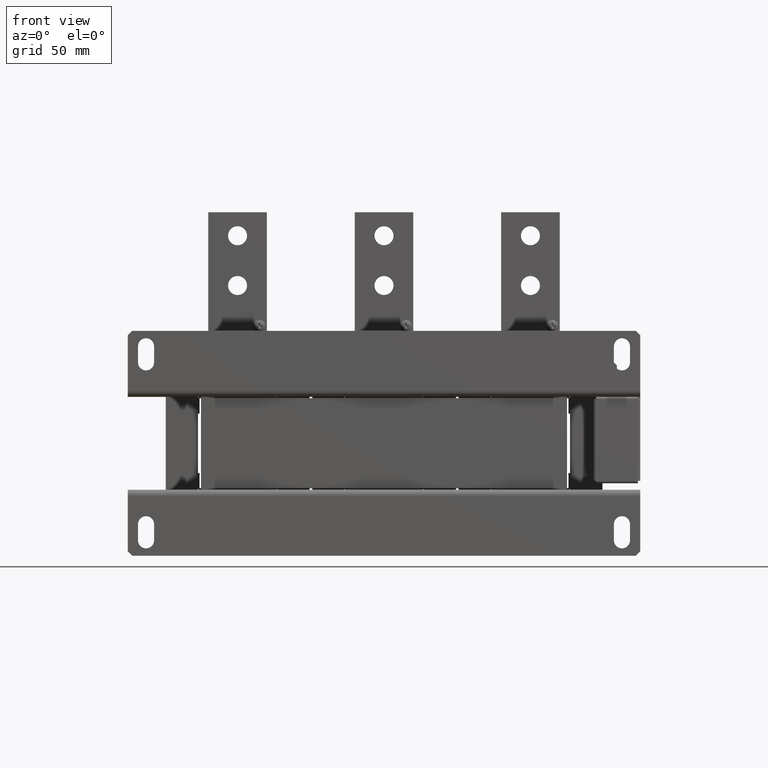
[diagram: clean part render]
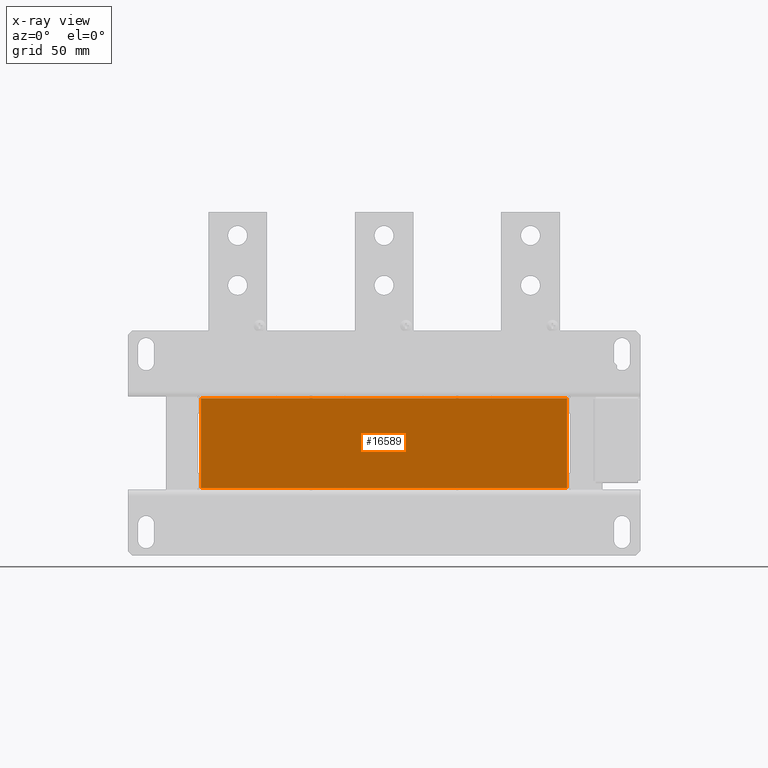
[diagram: x-ray — body ghosted, one internal face saturated and labeled with its STEP entity id]
A machine part, front view, then the same camera in x-ray: the body is ghosted and one INTERNAL B-rep face — a face not visible from any outside direction — is saturated and labeled: STEP entity #16589.
In plain terms, the highlighted planar face has unit normal (0, -1, 0).
Its self-contained STEP definition (entity closure, byte-faithful):
#257 = DIRECTION ( 'NONE',  ( 0.0000000000000000000, -0.0000000000000000000, -1.000000000000000000 ) ) ;
#3249 = EDGE_CURVE ( 'NONE', #13008, #23351, #4873, .T. ) ;
#4045 = DIRECTION ( 'NONE',  ( 0.0000000000000000000, 0.0000000000000000000, -1.000000000000000000 ) ) ;
#4873 = LINE ( 'NONE', #5766, #11259 ) ;
#5766 = CARTESIAN_POINT ( 'NONE',  ( -125.0000000000000000, 0.4000000000000000200, 30.74999999999999600 ) ) ;
#6509 = VECTOR ( 'NONE', #24486, 1000.000000000000000 ) ;
#8010 = DIRECTION ( 'NONE',  ( -0.0000000000000000000, -0.0000000000000000000, 1.000000000000000000 ) ) ;
#9512 = EDGE_CURVE ( 'NONE', #21277, #13008, #19135, .T. ) ;
#10521 = CARTESIAN_POINT ( 'NONE',  ( 125.0000000000000000, 0.4000000000000000200, 30.74999999999999600 ) ) ;
#11259 = VECTOR ( 'NONE', #14153, 1000.000000000000000 ) ;
#11376 = LINE ( 'NONE', #14014, #6509 ) ;
#11521 = ORIENTED_EDGE ( 'NONE', *, *, #22422, .T. ) ;
#12907 = DIRECTION ( 'NONE',  ( 0.0000000000000000000, -1.000000000000000000, 0.0000000000000000000 ) ) ;
#13008 = VERTEX_POINT ( 'NONE', #20979 ) ;
#14014 = CARTESIAN_POINT ( 'NONE',  ( -125.0000000000000000, 0.4000000000000000200, -30.75000000000000400 ) ) ;
#14153 = DIRECTION ( 'NONE',  ( 1.000000000000000000, 0.0000000000000000000, 0.0000000000000000000 ) ) ;
#15880 = CARTESIAN_POINT ( 'NONE',  ( 125.0000000000000000, 0.4000000000000000200, -30.75000000000000400 ) ) ;
#16011 = ORIENTED_EDGE ( 'NONE', *, *, #9512, .T. ) ;
#16589 = ADVANCED_FACE ( 'NONE', ( #26573 ), #23367, .F. ) ;
#16704 = CARTESIAN_POINT ( 'NONE',  ( 125.0000000000000000, 0.4000000000000000200, 30.74999999999999600 ) ) ;
#17006 = EDGE_CURVE ( 'NONE', #23351, #26149, #26627, .T. ) ;
#18822 = ORIENTED_EDGE ( 'NONE', *, *, #17006, .T. ) ;
#19135 = LINE ( 'NONE', #26934, #19165 ) ;
#19165 = VECTOR ( 'NONE', #8010, 1000.000000000000000 ) ;
#20171 = EDGE_LOOP ( 'NONE', ( #18822, #11521, #16011, #21217 ) ) ;
#20979 = CARTESIAN_POINT ( 'NONE',  ( -125.0000000000000000, 0.4000000000000000200, 30.74999999999999600 ) ) ;
#21217 = ORIENTED_EDGE ( 'NONE', *, *, #3249, .T. ) ;
#21277 = VERTEX_POINT ( 'NONE', #26167 ) ;
#22248 = VECTOR ( 'NONE', #4045, 1000.000000000000000 ) ;
#22418 = AXIS2_PLACEMENT_3D ( 'NONE', #23271, #12907, #257 ) ;
#22422 = EDGE_CURVE ( 'NONE', #26149, #21277, #11376, .T. ) ;
#23271 = CARTESIAN_POINT ( 'NONE',  ( 0.0000000000000000000, 0.4000000000000000200, 0.0000000000000000000 ) ) ;
#23351 = VERTEX_POINT ( 'NONE', #10521 ) ;
#23367 = PLANE ( 'NONE',  #22418 ) ;
#24486 = DIRECTION ( 'NONE',  ( -1.000000000000000000, -0.0000000000000000000, -0.0000000000000000000 ) ) ;
#26149 = VERTEX_POINT ( 'NONE', #15880 ) ;
#26167 = CARTESIAN_POINT ( 'NONE',  ( -125.0000000000000000, 0.4000000000000000200, -30.75000000000000400 ) ) ;
#26573 = FACE_OUTER_BOUND ( 'NONE', #20171, .T. ) ;
#26627 = LINE ( 'NONE', #16704, #22248 ) ;
#26934 = CARTESIAN_POINT ( 'NONE',  ( -125.0000000000000000, 0.4000000000000000200, 30.74999999999999600 ) ) ;